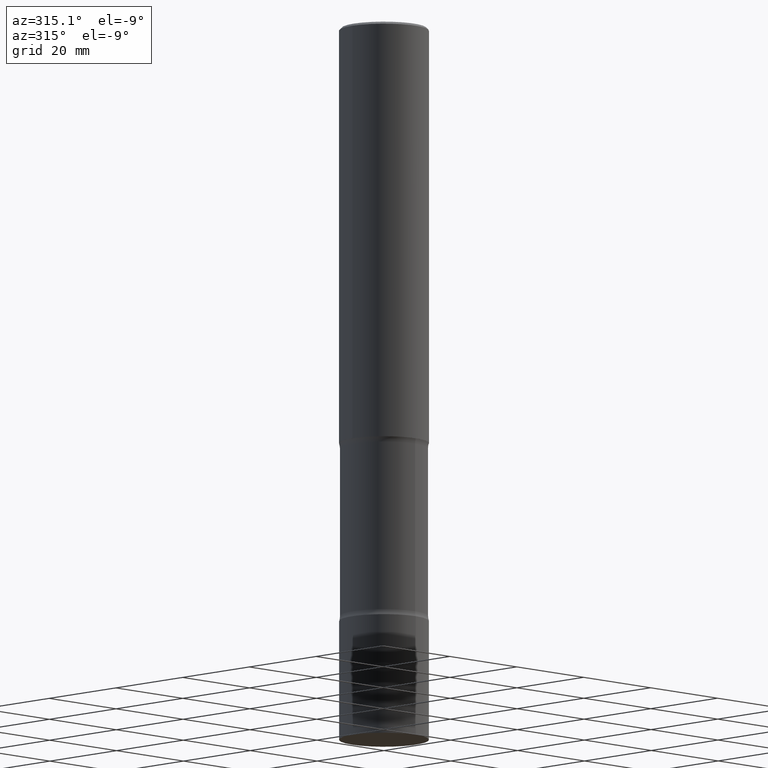
[diagram: clean part render]
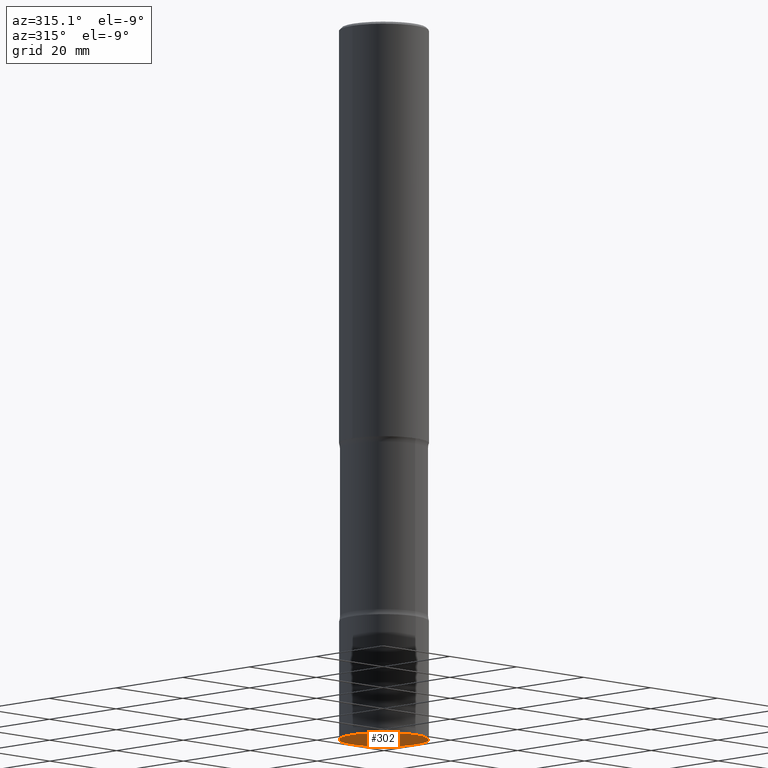
[diagram: same view with one face highlighted and labeled with its STEP entity id]
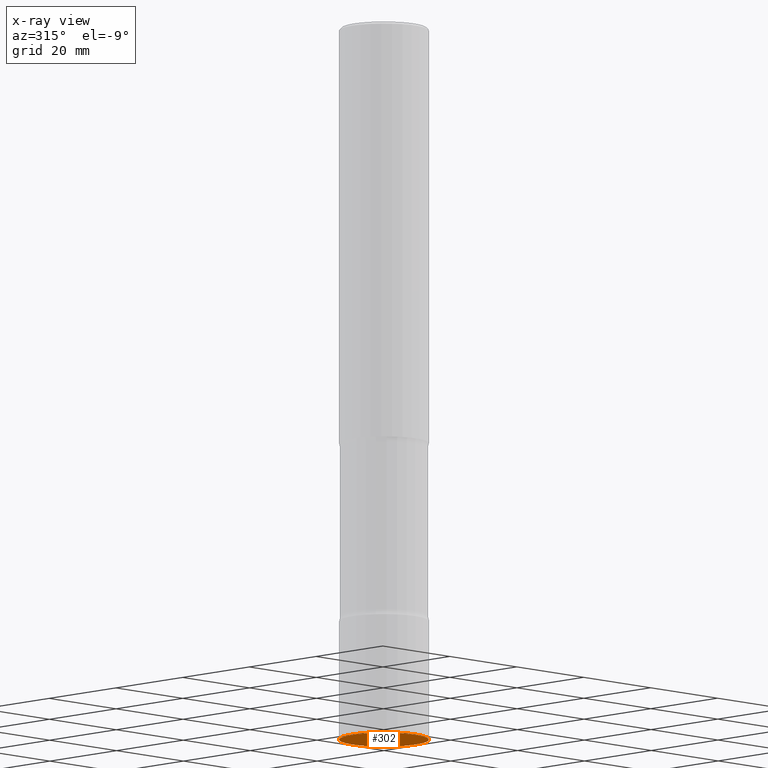
[diagram: x-ray of the same camera — body ghosted, the highlighted face saturated]
A machine part, auxiliary view. The second image highlights one B-rep face of the part: STEP entity #302.
The next image is the same camera in x-ray: the body ghosted, the highlighted face saturated — about 0% of this face is hidden behind the body in this view.
In plain terms, the highlighted planar face has unit normal (0, -0, -1).
Its self-contained STEP definition (entity closure, byte-faithful):
#2 = DIRECTION ( 'NONE',  ( -2.445201761866351405E-29, 3.491863761506864371E-15, 1.000000000000000000 ) ) ;
#5 = FACE_OUTER_BOUND ( 'NONE', #504, .T. ) ;
#20 = CARTESIAN_POINT ( 'NONE',  ( 1.467121057119811123E-28, -2.095118256904118859E-14, -6.000000000000000888 ) ) ;
#35 = VERTEX_POINT ( 'NONE', #166 ) ;
#68 = DIRECTION ( 'NONE',  ( -2.445201761866351405E-29, 3.491863761506864371E-15, 1.000000000000000000 ) ) ;
#87 = CARTESIAN_POINT ( 'NONE',  ( 2.463921585354229188E-29, -3.843271519251016677E-14, -5.999999999999999112 ) ) ;
#89 = ORIENTED_EDGE ( 'NONE', *, *, #479, .F. ) ;
#95 = DIRECTION ( 'NONE',  ( -6.982962677686265922E-15, -1.000000000000000000, 2.913971193241879977E-15 ) ) ;
#119 = CARTESIAN_POINT ( 'NONE',  ( -2.618611004132204077E-15, -0.3750000000000210387, -5.999999999999999112 ) ) ;
#137 = AXIS2_PLACEMENT_3D ( 'NONE', #358, #2, #95 ) ;
#166 = CARTESIAN_POINT ( 'NONE',  ( 2.664535259100510198E-15, 0.3749999999999791278, -6.000000000000001776 ) ) ;
#269 = VERTEX_POINT ( 'NONE', #119 ) ;
#283 = EDGE_CURVE ( 'NONE', #269, #35, #363, .T. ) ;
#302 = ADVANCED_FACE ( 'NONE', ( #5 ), #401, .T. ) ;
#307 = CIRCLE ( 'NONE', #461, 0.3750000000000001110 ) ;
#358 = CARTESIAN_POINT ( 'NONE',  ( 1.467121057119811123E-28, -2.095118256904118859E-14, -6.000000000000000888 ) ) ;
#363 = CIRCLE ( 'NONE', #137, 0.3750000000000001110 ) ;
#380 = DIRECTION ( 'NONE',  ( -6.982962677686265922E-15, -1.000000000000000000, 2.913971193241879977E-15 ) ) ;
#396 = DIRECTION ( 'NONE',  ( 6.982962677686265922E-15, 1.000000000000000000, -3.491863761506864371E-15 ) ) ;
#401 = PLANE ( 'NONE',  #426 ) ;
#423 = ORIENTED_EDGE ( 'NONE', *, *, #283, .F. ) ;
#426 = AXIS2_PLACEMENT_3D ( 'NONE', #87, #475, #396 ) ;
#461 = AXIS2_PLACEMENT_3D ( 'NONE', #20, #68, #380 ) ;
#475 = DIRECTION ( 'NONE',  ( 2.445201761866351405E-29, -3.491863761506864371E-15, -1.000000000000000000 ) ) ;
#479 = EDGE_CURVE ( 'NONE', #35, #269, #307, .T. ) ;
#504 = EDGE_LOOP ( 'NONE', ( #423, #89 ) ) ;